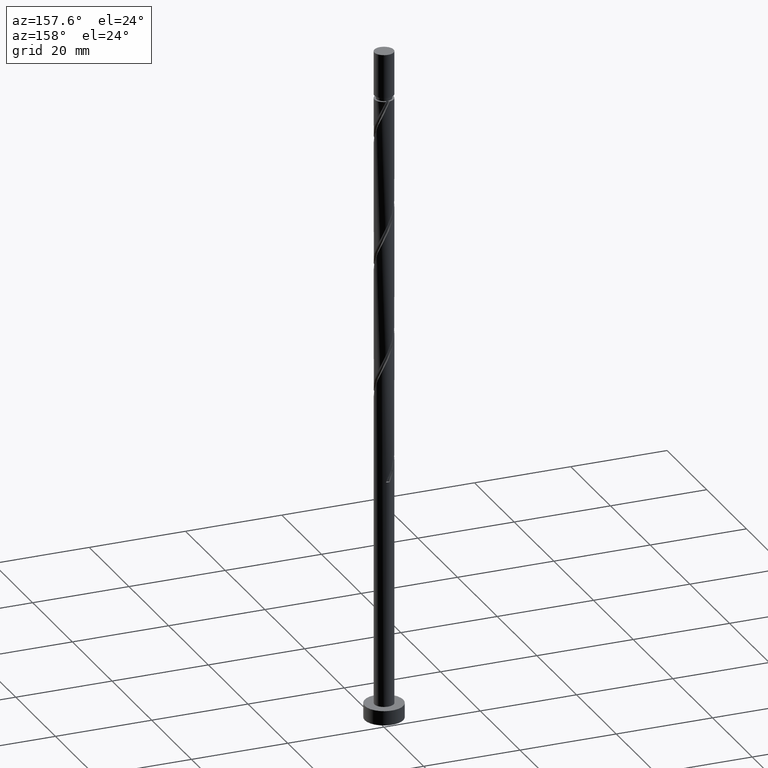
[diagram: clean part render]
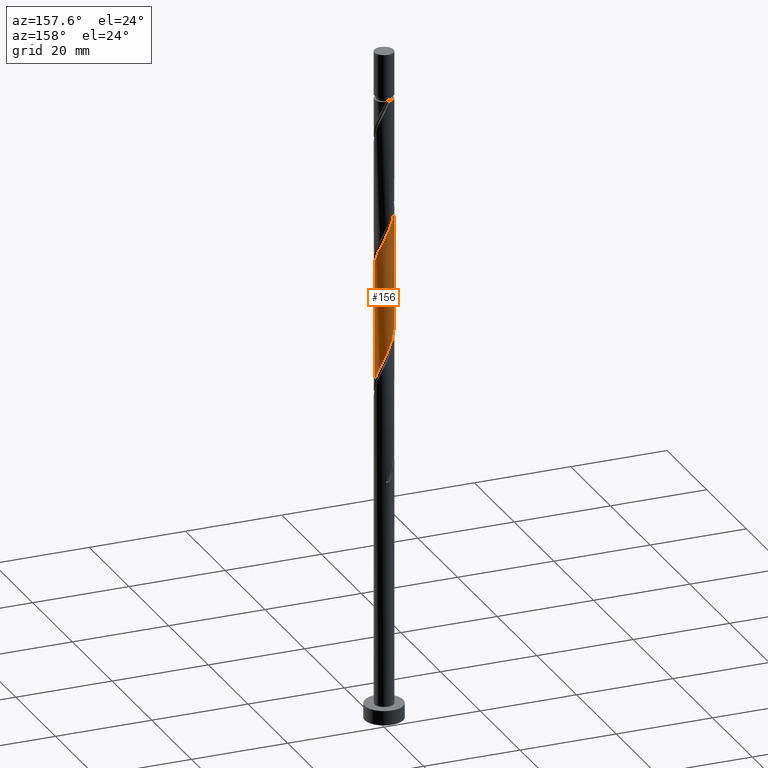
[diagram: same view with one face highlighted and labeled with its STEP entity id]
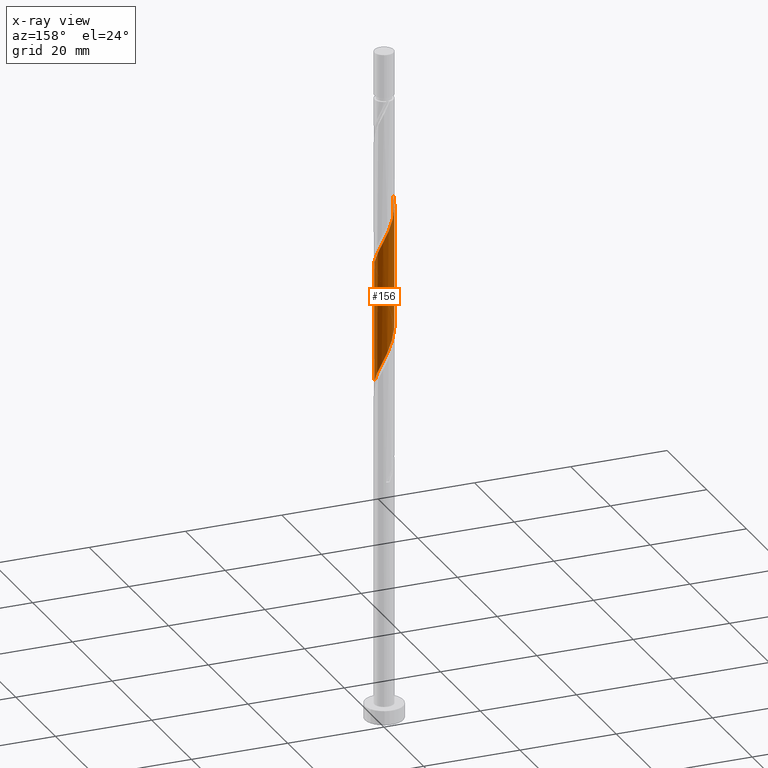
[diagram: x-ray of the same camera — body ghosted, the highlighted face saturated]
A machine part, auxiliary view. The second image highlights one B-rep face of the part: STEP entity #156.
The next image is the same camera in x-ray: the body ghosted, the highlighted face saturated — about 0% of this face is hidden behind the body in this view.
In plain terms, the highlighted cylindrical surface (edge-blend (fillet) strip) has radius 2 mm, axis along (-0, -0, -1).
Its self-contained STEP definition (entity closure, byte-faithful):
#108 = CARTESIAN_POINT ( 'NONE',  ( -2.000000000000000000, -3.694334713763628715E-15, 84.33349410516036926 ) ) ;
#116 = CARTESIAN_POINT ( 'NONE',  ( 1.188337955536407531, 1.634179211325358372, 74.99919114101102480 ) ) ;
#121 =( BOUNDED_CURVE ( )  B_SPLINE_CURVE ( 2, ( #1572, #935, #664, #295, #1321, #1422, #267, #1169, #1176, #523, #1045, #1037, #409, #618, #1507, #480, #878, #116, #260, #1131, #239, #1288, #138, #488, #249 ),
 .UNSPECIFIED., .F., .F. ) 
 B_SPLINE_CURVE_WITH_KNOTS ( ( 3, 2, 2, 2, 2, 2, 2, 2, 2, 2, 2, 2, 3 ),
 ( 0.6795252162417514397, 0.6818181818181817677, 0.6931818181818182323, 0.7045454545454545858, 0.7159090909090909394, 0.7272727272727272929, 0.7386363636363636465, 0.7500000000000000000, 0.7613636363636363535, 0.7727272727272727071, 0.7840909090909090606, 0.7954545454545454142, 0.8045252162417513286 ),
 .UNSPECIFIED. ) 
 CURVE ( )  GEOMETRIC_REPRESENTATION_ITEM ( )  RATIONAL_B_SPLINE_CURVE ( ( 0.9061101570135570160, 0.9072237824201392353, 0.9090909090909164991, 0.8998376744372188485, 0.9090909090909164991, 0.8998376744372188485, 0.9090909090909164991, 0.8998376744372188485, 0.9090909090909164991, 0.8998376744372188485, 0.9090909090909164991, 0.8998376744372188485, 0.9090909090909164991, 0.8998376744372188485, 0.9090909090909164991, 0.8998376744372188485, 0.9090909090909164991, 0.8998376744372188485, 0.9090909090909164991, 0.8998376744372188485, 0.9090909090909164991, 0.8998376744372188485, 0.9090909090909164991, 0.9017048011079962233, 0.9061101570135567940 ) ) 
 REPRESENTATION_ITEM ( '' )  );
#138 = CARTESIAN_POINT ( 'NONE',  ( 1.948211798543800333, 0.4521844623765071680, 71.96888811070799363 ) ) ;
#144 = CYLINDRICAL_SURFACE ( 'NONE', #992, 2.000000000000000000 ) ;
#153 = EDGE_LOOP ( 'NONE', ( #881, #1419, #1547, #1040 ) ) ;
#154 = CARTESIAN_POINT ( 'NONE',  ( 2.000000000000002665, 1.278808170148940589E-15, 95.96791847989197777 ) ) ;
#156 = ADVANCED_FACE ( 'NONE', ( #1307 ), #144, .T. ) ;
#179 = CARTESIAN_POINT ( 'NONE',  ( 1.448427499289744569, 1.408810338760220437, 99.24161538343523148 ) ) ;
#195 = CARTESIAN_POINT ( 'NONE',  ( -1.948211798543802997, 0.4521844623765087778, 108.3325244743443392 ) ) ;
#198 = EDGE_CURVE ( 'NONE', #667, #1280, #121, .T. ) ;
#225 = LINE ( 'NONE', #309, #1189 ) ;
#238 = VECTOR ( 'NONE', #1233, 1000.000000000000000 ) ;
#239 = CARTESIAN_POINT ( 'NONE',  ( 1.741900447066338176, 0.9827425057002936448, 73.18100932282921178 ) ) ;
#249 = CARTESIAN_POINT ( 'NONE',  ( 2.000000000000000444, -2.303350388338456764E-15, 71.00016077182705487 ) ) ;
#260 = CARTESIAN_POINT ( 'NONE',  ( 1.394470680848405975, 1.433684595806965723, 74.39313053495042993 ) ) ;
#267 = CARTESIAN_POINT ( 'NONE',  ( -1.617545623245911779, 1.176242388590887256, 81.66585780767766778 ) ) ;
#295 = CARTESIAN_POINT ( 'NONE',  ( -1.980155124014551182, 0.4020876473299552778, 83.48403962585950921 ) ) ;
#298 = CARTESIAN_POINT ( 'NONE',  ( -1.600603406160406639, 1.233189980288574183, 106.5143426561625120 ) ) ;
#304 = CARTESIAN_POINT ( 'NONE',  ( 1.996690616564942733, 0.1150068768444765244, 96.21131235313225716 ) ) ;
#309 = CARTESIAN_POINT ( 'NONE',  ( -2.000000000000000000, 0.000000000000000000, 140.0000000000000000 ) ) ;
#387 = VERTEX_POINT ( 'NONE', #1262 ) ;
#409 = CARTESIAN_POINT ( 'NONE',  ( -0.1703224295138024702, 1.992734370156875157, 78.02949417131404175 ) ) ;
#413 = CARTESIAN_POINT ( 'NONE',  ( -0.9340691933046029183, 1.768478086411957806, 104.6961608379807132 ) ) ;
#426 = CARTESIAN_POINT ( 'NONE',  ( 0.1703224295138031641, 1.992734370156877821, 102.2719184137382911 ) ) ;
#460 = CARTESIAN_POINT ( 'NONE',  ( 2.000000000000000000, 2.449293598294706414E-16, 140.0000000000000000 ) ) ;
#480 = CARTESIAN_POINT ( 'NONE',  ( 0.6798004310727963073, 1.902776961498551689, 76.21131235313220031 ) ) ;
#488 = CARTESIAN_POINT ( 'NONE',  ( 2.000000000000000888, 0.2290578547702440404, 71.48612072479836854 ) ) ;
#523 = CARTESIAN_POINT ( 'NONE',  ( -0.9928482695149674075, 1.759812803970227879, 79.84767598949588319 ) ) ;
#563 = CARTESIAN_POINT ( 'NONE',  ( 1.786663747202085206, 0.9436744384215541848, 98.02949417131402754 ) ) ;
#570 = LINE ( 'NONE', #460, #238 ) ;
#573 = CARTESIAN_POINT ( 'NONE',  ( -2.000000000000002220, 0.2290578547702504242, 108.8152918602539785 ) ) ;
#580 = CARTESIAN_POINT ( 'NONE',  ( -2.000000000000002665, -1.376027504721667048E-15, 109.3012518132252779 ) ) ;
#618 = CARTESIAN_POINT ( 'NONE',  ( 0.1161895186125005419, 2.017223038501447796, 77.42343356525343268 ) ) ;
#656 = DIRECTION ( 'NONE',  ( -1.000000000000000000, 0.000000000000000000, 0.000000000000000000 ) ) ;
#664 = CARTESIAN_POINT ( 'NONE',  ( -1.996690616564939846, 0.1150068768444770934, 84.09010023192008987 ) ) ;
#667 = VERTEX_POINT ( 'NONE', #108 ) ;
#728 = CARTESIAN_POINT ( 'NONE',  ( 2.000000000000000444, -2.303350388338456764E-15, 71.00016077182705487 ) ) ;
#750 =( BOUNDED_CURVE ( )  B_SPLINE_CURVE ( 2, ( #154, #1186, #304, #1446, #1050, #563, #1199, #179, #1568, #1316, #819, #1207, #426, #1453, #1589, #1562, #413, #925, #799, #298, #813, #1325, #195, #573, #1228 ),
 .UNSPECIFIED., .F., .T. ) 
 B_SPLINE_CURVE_WITH_KNOTS ( ( 3, 2, 2, 2, 2, 2, 2, 2, 2, 2, 2, 2, 3 ),
 ( 0.4295252162417513841, 0.4318181818181817677, 0.4431818181818182323, 0.4545454545454545858, 0.4659090909090909394, 0.4772727272727272929, 0.4886363636363636465, 0.5000000000000000000, 0.5113636363636363535, 0.5227272727272727071, 0.5340909090909091717, 0.5454545454545454142, 0.5545252162417512176 ),
 .UNSPECIFIED. ) 
 CURVE ( )  GEOMETRIC_REPRESENTATION_ITEM ( )  RATIONAL_B_SPLINE_CURVE ( ( 0.9061101570135623451, 0.9072237824201445644, 0.9090909090909219392, 0.8998376744372241776, 0.9090909090909219392, 0.8998376744372241776, 0.9090909090909219392, 0.8998376744372241776, 0.9090909090909219392, 0.8998376744372241776, 0.9090909090909219392, 0.8998376744372241776, 0.9090909090909219392, 0.8998376744372241776, 0.9090909090909219392, 0.8998376744372241776, 0.9090909090909219392, 0.8998376744372241776, 0.9090909090909219392, 0.8998376744372241776, 0.9090909090909219392, 0.8998376744372241776, 0.9090909090909219392, 0.9017048011080018854, 0.9061101570135621230 ) ) 
 REPRESENTATION_ITEM ( '' )  );
#799 = CARTESIAN_POINT ( 'NONE',  ( -1.394470680848407307, 1.433684595806968165, 105.9082820501019029 ) ) ;
#813 = CARTESIAN_POINT ( 'NONE',  ( -1.741900447066340618, 0.9827425057002951991, 107.1204032622231210 ) ) ;
#819 = CARTESIAN_POINT ( 'NONE',  ( 0.7248413235775371666, 1.864029252891267197, 101.0597972016170729 ) ) ;
#849 = EDGE_CURVE ( 'NONE', #387, #1280, #570, .T. ) ;
#878 = CARTESIAN_POINT ( 'NONE',  ( 0.9340691933046019191, 1.768478086411955363, 75.60525174707161966 ) ) ;
#881 = ORIENTED_EDGE ( 'NONE', *, *, #1388, .F. ) ;
#925 = CARTESIAN_POINT ( 'NONE',  ( -1.188337955536408641, 1.634179211325360814, 105.3022214440413080 ) ) ;
#935 = CARTESIAN_POINT ( 'NONE',  ( -2.000000000000000000, 0.05755105304764877860, 84.21139610044214407 ) ) ;
#992 = AXIS2_PLACEMENT_3D ( 'NONE', #1564, #1059, #656 ) ;
#1037 = CARTESIAN_POINT ( 'NONE',  ( -0.4568343776401055933, 1.968245701812301407, 78.63555477737466504 ) ) ;
#1040 = ORIENTED_EDGE ( 'NONE', *, *, #1632, .F. ) ;
#1045 = CARTESIAN_POINT ( 'NONE',  ( -0.7248413235775362784, 1.864029252891264310, 79.24161538343524569 ) ) ;
#1050 = CARTESIAN_POINT ( 'NONE',  ( 1.883409435608319527, 0.6728810428757547868, 97.42343356525343268 ) ) ;
#1059 = DIRECTION ( 'NONE',  ( -0.000000000000000000, -0.000000000000000000, -1.000000000000000000 ) ) ;
#1131 = CARTESIAN_POINT ( 'NONE',  ( 1.600603406160404418, 1.233189980288572851, 73.78706992888980665 ) ) ;
#1169 = CARTESIAN_POINT ( 'NONE',  ( -1.448427499289741460, 1.408810338760219993, 81.05979720161708713 ) ) ;
#1176 = CARTESIAN_POINT ( 'NONE',  ( -1.220637884402354434, 1.584311571365224047, 80.45373659555646384 ) ) ;
#1186 = CARTESIAN_POINT ( 'NONE',  ( 2.000000000000002665, 0.05755105304764680796, 96.09001648461017453 ) ) ;
#1189 = VECTOR ( 'NONE', #1328, 1000.000000000000000 ) ;
#1199 = CARTESIAN_POINT ( 'NONE',  ( 1.617545623245914443, 1.176242388590887700, 98.63555477737466504 ) ) ;
#1207 = CARTESIAN_POINT ( 'NONE',  ( 0.4568343776401065925, 1.968245701812303405, 101.6658578076776536 ) ) ;
#1228 = CARTESIAN_POINT ( 'NONE',  ( -2.000000000000002665, -1.376027504721667048E-15, 109.3012518132252779 ) ) ;
#1233 = DIRECTION ( 'NONE',  ( -0.000000000000000000, -0.000000000000000000, -1.000000000000000000 ) ) ;
#1262 = CARTESIAN_POINT ( 'NONE',  ( 2.000000000000002665, 1.278808170148940589E-15, 95.96791847989196356 ) ) ;
#1280 = VERTEX_POINT ( 'NONE', #728 ) ;
#1288 = CARTESIAN_POINT ( 'NONE',  ( 1.883197487972271933, 0.7322950311120131062, 72.57494871676860271 ) ) ;
#1307 = FACE_OUTER_BOUND ( 'NONE', #153, .T. ) ;
#1316 = CARTESIAN_POINT ( 'NONE',  ( 0.9928482695149681847, 1.759812803970230322, 100.4537365955564923 ) ) ;
#1321 = CARTESIAN_POINT ( 'NONE',  ( -1.883409435608316418, 0.6728810428757542317, 82.87797901979891435 ) ) ;
#1325 = CARTESIAN_POINT ( 'NONE',  ( -1.883197487972274153, 0.7322950311120157707, 107.7264638682837301 ) ) ;
#1328 = DIRECTION ( 'NONE',  ( -0.000000000000000000, -0.000000000000000000, -1.000000000000000000 ) ) ;
#1388 = EDGE_CURVE ( 'NONE', #387, #1409, #750, .T. ) ;
#1409 = VERTEX_POINT ( 'NONE', #580 ) ;
#1419 = ORIENTED_EDGE ( 'NONE', *, *, #849, .T. ) ;
#1422 = CARTESIAN_POINT ( 'NONE',  ( -1.786663747202082320, 0.9436744384215540737, 82.27191841373829106 ) ) ;
#1446 = CARTESIAN_POINT ( 'NONE',  ( 1.980155124014553403, 0.4020876473299550558, 96.81737295919285202 ) ) ;
#1453 = CARTESIAN_POINT ( 'NONE',  ( -0.1161895186125001117, 2.017223038501450461, 102.8779790197988859 ) ) ;
#1507 = CARTESIAN_POINT ( 'NONE',  ( 0.3979949748426487854, 1.959999999999999964, 76.81737295919285202 ) ) ;
#1547 = ORIENTED_EDGE ( 'NONE', *, *, #198, .F. ) ;
#1562 = CARTESIAN_POINT ( 'NONE',  ( -0.6798004310727967514, 1.902776961498554353, 104.0901002319200899 ) ) ;
#1564 = CARTESIAN_POINT ( 'NONE',  ( 0.000000000000000000, 0.000000000000000000, 140.0000000000000000 ) ) ;
#1568 = CARTESIAN_POINT ( 'NONE',  ( 1.220637884402355988, 1.584311571365226046, 99.84767598949586898 ) ) ;
#1572 = CARTESIAN_POINT ( 'NONE',  ( -2.000000000000000000, -3.694334713763628715E-15, 84.33349410516036926 ) ) ;
#1589 = CARTESIAN_POINT ( 'NONE',  ( -0.3979949748426481193, 1.960000000000002851, 103.4840396258595234 ) ) ;
#1632 = EDGE_CURVE ( 'NONE', #1409, #667, #225, .T. ) ;